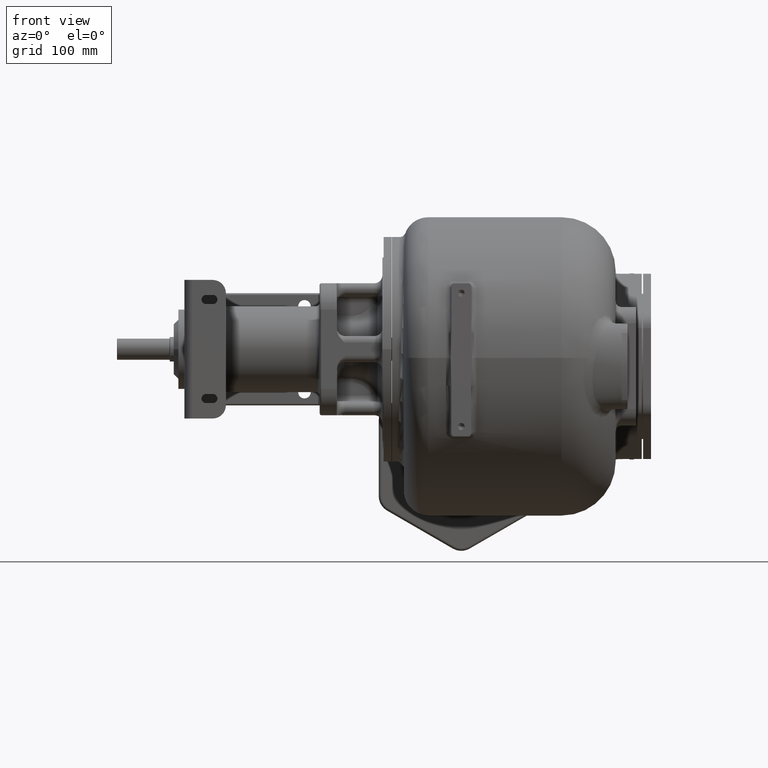
[diagram: clean part render]
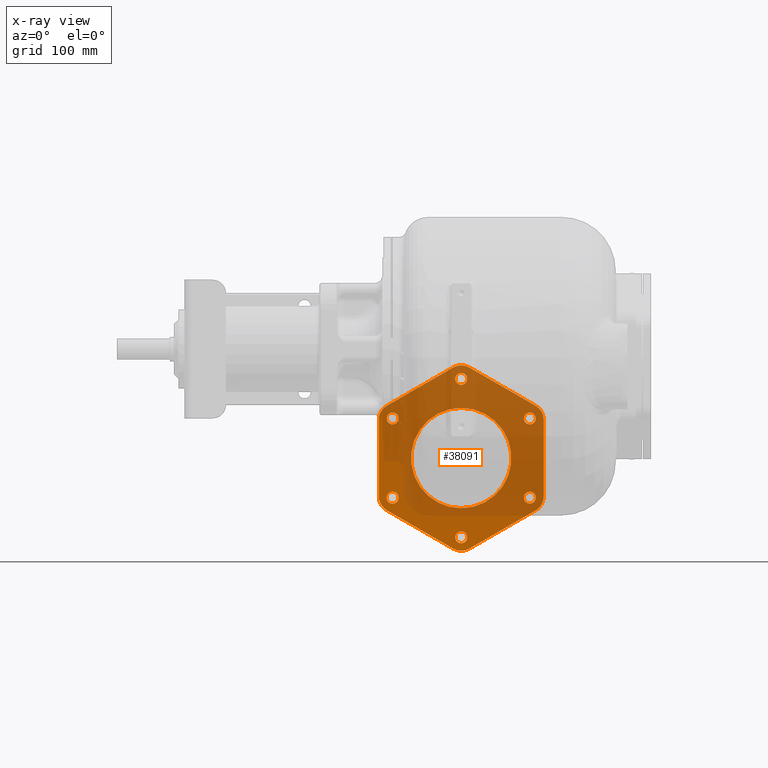
[diagram: x-ray — body ghosted, one internal face saturated and labeled with its STEP entity id]
A machine part, front view, then the same camera in x-ray: the body is ghosted and one INTERNAL B-rep face — a face not visible from any outside direction — is saturated and labeled: STEP entity #38091.
In plain terms, the highlighted planar face has unit normal (0, 1, 0).
Its self-contained STEP definition (entity closure, byte-faithful):
#37486=CARTESIAN_POINT('',(1.E2,5.52E2,-1.072649730810E2));
#37487=DIRECTION('',(0.E0,-1.E0,0.E0));
#37488=DIRECTION('',(1.E0,0.E0,0.E0));
#37489=AXIS2_PLACEMENT_3D('',#37486,#37487,#37488);
#37491=DIRECTION('',(0.E0,0.E0,1.E0));
#37492=VECTOR('',#37491,1.154700538379E2);
#37493=CARTESIAN_POINT('',(1.25E2,5.52E2,-2.227350269190E2));
#37494=LINE('',#37493,#37492);
#37495=CARTESIAN_POINT('',(1.E2,5.52E2,-2.227350269190E2));
#37496=DIRECTION('',(0.E0,-1.E0,0.E0));
#37497=DIRECTION('',(5.E-1,0.E0,-8.660254037844E-1));
#37498=AXIS2_PLACEMENT_3D('',#37495,#37496,#37497);
#37500=DIRECTION('',(8.660254037844E-1,0.E0,5.E-1));
#37501=VECTOR('',#37500,1.154700538379E2);
#37502=CARTESIAN_POINT('',(1.25E1,5.52E2,-3.021206889325E2));
#37503=LINE('',#37502,#37501);
#37504=CARTESIAN_POINT('',(-1.362119714437E-14,5.52E2,-2.804700538379E2));
#37505=DIRECTION('',(0.E0,-1.E0,0.E0));
#37506=DIRECTION('',(-5.E-1,0.E0,-8.660254037844E-1));
#37507=AXIS2_PLACEMENT_3D('',#37504,#37505,#37506);
#37509=DIRECTION('',(8.660254037844E-1,0.E0,-5.E-1));
#37510=VECTOR('',#37509,1.154700538379E2);
#37511=CARTESIAN_POINT('',(-1.125E2,5.52E2,-2.443856620136E2));
#37512=LINE('',#37511,#37510);
#37513=CARTESIAN_POINT('',(-1.E2,5.52E2,-2.227350269190E2));
#37514=DIRECTION('',(0.E0,-1.E0,0.E0));
#37515=DIRECTION('',(-1.E0,0.E0,0.E0));
#37516=AXIS2_PLACEMENT_3D('',#37513,#37514,#37515);
#37518=DIRECTION('',(0.E0,0.E0,-1.E0));
#37519=VECTOR('',#37518,1.154700538379E2);
#37520=CARTESIAN_POINT('',(-1.25E2,5.52E2,-1.072649730810E2));
#37521=LINE('',#37520,#37519);
#37522=CARTESIAN_POINT('',(-1.E2,5.52E2,-1.072649730810E2));
#37523=DIRECTION('',(0.E0,-1.E0,0.E0));
#37524=DIRECTION('',(-5.E-1,0.E0,8.660254037844E-1));
#37525=AXIS2_PLACEMENT_3D('',#37522,#37523,#37524);
#37527=DIRECTION('',(-8.660254037844E-1,0.E0,-5.E-1));
#37528=VECTOR('',#37527,1.154700538379E2);
#37529=CARTESIAN_POINT('',(-1.25E1,5.52E2,-2.787931106746E1));
#37530=LINE('',#37529,#37528);
#37531=CARTESIAN_POINT('',(1.362120489790E-14,5.52E2,-4.952994616208E1));
#37532=DIRECTION('',(0.E0,-1.E0,0.E0));
#37533=DIRECTION('',(5.E-1,0.E0,8.660254037844E-1));
#37534=AXIS2_PLACEMENT_3D('',#37531,#37532,#37533);
#37536=DIRECTION('',(-8.660254037844E-1,0.E0,5.E-1));
#37537=VECTOR('',#37536,1.154700538379E2);
#37538=CARTESIAN_POINT('',(1.125E2,5.52E2,-8.561433798643E1));
#37539=LINE('',#37538,#37537);
#37540=CARTESIAN_POINT('',(0.E0,5.52E2,-1.65E2));
#37541=DIRECTION('',(0.E0,-1.E0,0.E0));
#37542=DIRECTION('',(0.E0,0.E0,-1.E0));
#37543=AXIS2_PLACEMENT_3D('',#37540,#37541,#37542);
#37545=CARTESIAN_POINT('',(0.E0,5.52E2,-1.65E2));
#37546=DIRECTION('',(0.E0,-1.E0,0.E0));
#37547=DIRECTION('',(0.E0,0.E0,1.E0));
#37548=AXIS2_PLACEMENT_3D('',#37545,#37546,#37547);
#37550=CARTESIAN_POINT('',(-1.039230484541E2,5.52E2,-2.25E2));
#37551=DIRECTION('',(0.E0,1.E0,0.E0));
#37552=DIRECTION('',(0.E0,0.E0,1.E0));
#37553=AXIS2_PLACEMENT_3D('',#37550,#37551,#37552);
#37555=CARTESIAN_POINT('',(-1.039230484541E2,5.52E2,-2.25E2));
#37556=DIRECTION('',(0.E0,1.E0,0.E0));
#37557=DIRECTION('',(0.E0,0.E0,-1.E0));
#37558=AXIS2_PLACEMENT_3D('',#37555,#37556,#37557);
#37560=CARTESIAN_POINT('',(-2.842170249202E-14,5.52E2,-2.85E2));
#37561=DIRECTION('',(0.E0,1.E0,0.E0));
#37562=DIRECTION('',(-8.660254037844E-1,0.E0,5.E-1));
#37563=AXIS2_PLACEMENT_3D('',#37560,#37561,#37562);
#37565=CARTESIAN_POINT('',(-2.842170249202E-14,5.52E2,-2.85E2));
#37566=DIRECTION('',(0.E0,1.E0,0.E0));
#37567=DIRECTION('',(8.660254037844E-1,0.E0,-5.E-1));
#37568=AXIS2_PLACEMENT_3D('',#37565,#37566,#37567);
#37570=CARTESIAN_POINT('',(1.039230484541E2,5.52E2,-2.25E2));
#37571=DIRECTION('',(0.E0,1.E0,0.E0));
#37572=DIRECTION('',(-8.660254037844E-1,0.E0,-5.E-1));
#37573=AXIS2_PLACEMENT_3D('',#37570,#37571,#37572);
#37575=CARTESIAN_POINT('',(1.039230484541E2,5.52E2,-2.25E2));
#37576=DIRECTION('',(0.E0,1.E0,0.E0));
#37577=DIRECTION('',(8.660254037844E-1,0.E0,5.E-1));
#37578=AXIS2_PLACEMENT_3D('',#37575,#37576,#37577);
#37580=CARTESIAN_POINT('',(1.039230484541E2,5.52E2,-1.05E2));
#37581=DIRECTION('',(0.E0,1.E0,0.E0));
#37582=DIRECTION('',(0.E0,0.E0,-1.E0));
#37583=AXIS2_PLACEMENT_3D('',#37580,#37581,#37582);
#37585=CARTESIAN_POINT('',(1.039230484541E2,5.52E2,-1.05E2));
#37586=DIRECTION('',(0.E0,1.E0,0.E0));
#37587=DIRECTION('',(0.E0,0.E0,1.E0));
#37588=AXIS2_PLACEMENT_3D('',#37585,#37586,#37587);
#37590=CARTESIAN_POINT('',(7.105428663763E-14,5.52E2,-4.5E1));
#37591=DIRECTION('',(0.E0,1.E0,0.E0));
#37592=DIRECTION('',(8.660254037844E-1,0.E0,-5.E-1));
#37593=AXIS2_PLACEMENT_3D('',#37590,#37591,#37592);
#37595=CARTESIAN_POINT('',(7.105428663763E-14,5.52E2,-4.5E1));
#37596=DIRECTION('',(0.E0,1.E0,0.E0));
#37597=DIRECTION('',(-8.660254037844E-1,0.E0,5.E-1));
#37598=AXIS2_PLACEMENT_3D('',#37595,#37596,#37597);
#37600=CARTESIAN_POINT('',(-1.039230484541E2,5.52E2,-1.05E2));
#37601=DIRECTION('',(0.E0,1.E0,0.E0));
#37602=DIRECTION('',(8.660254037844E-1,0.E0,5.E-1));
#37603=AXIS2_PLACEMENT_3D('',#37600,#37601,#37602);
#37605=CARTESIAN_POINT('',(-1.039230484541E2,5.52E2,-1.05E2));
#37606=DIRECTION('',(0.E0,1.E0,0.E0));
#37607=DIRECTION('',(-8.660254037844E-1,0.E0,-5.E-1));
#37608=AXIS2_PLACEMENT_3D('',#37605,#37606,#37607);
#37658=CARTESIAN_POINT('',(-1.039230484541E2,5.52E2,-2.16E2));
#37660=VERTEX_POINT('',#37658);
#37662=CARTESIAN_POINT('',(-1.039230484541E2,5.52E2,-2.34E2));
#37664=VERTEX_POINT('',#37662);
#37666=CARTESIAN_POINT('',(-7.794228634060E0,5.52E2,-2.805E2));
#37668=VERTEX_POINT('',#37666);
#37670=CARTESIAN_POINT('',(7.794228634060E0,5.52E2,-2.895E2));
#37672=VERTEX_POINT('',#37670);
#37674=CARTESIAN_POINT('',(9.612881982007E1,5.52E2,-2.295E2));
#37676=VERTEX_POINT('',#37674);
#37678=CARTESIAN_POINT('',(1.117172770882E2,5.52E2,-2.205E2));
#37680=VERTEX_POINT('',#37678);
#37682=CARTESIAN_POINT('',(1.039230484541E2,5.52E2,-1.14E2));
#37684=VERTEX_POINT('',#37682);
#37686=CARTESIAN_POINT('',(1.039230484541E2,5.52E2,-9.6E1));
#37688=VERTEX_POINT('',#37686);
#37690=CARTESIAN_POINT('',(7.794228634060E0,5.52E2,-4.95E1));
#37692=VERTEX_POINT('',#37690);
#37694=CARTESIAN_POINT('',(-7.794228634060E0,5.52E2,-4.05E1));
#37696=VERTEX_POINT('',#37694);
#37698=CARTESIAN_POINT('',(-9.612881982007E1,5.52E2,-1.005E2));
#37700=VERTEX_POINT('',#37698);
#37702=CARTESIAN_POINT('',(-1.117172770882E2,5.52E2,-1.095E2));
#37704=VERTEX_POINT('',#37702);
#37706=CARTESIAN_POINT('',(0.E0,5.52E2,-2.41E2));
#37707=CARTESIAN_POINT('',(0.E0,5.52E2,-8.9E1));
#37708=VERTEX_POINT('',#37706);
#37709=VERTEX_POINT('',#37707);
#37718=CARTESIAN_POINT('',(1.25E2,5.52E2,-1.072649730810E2));
#37719=VERTEX_POINT('',#37718);
#37720=CARTESIAN_POINT('',(1.125E2,5.52E2,-8.561433798643E1));
#37721=VERTEX_POINT('',#37720);
#37726=CARTESIAN_POINT('',(1.25E1,5.52E2,-2.787931106746E1));
#37727=VERTEX_POINT('',#37726);
#37728=CARTESIAN_POINT('',(-1.25E1,5.52E2,-2.787931106746E1));
#37729=VERTEX_POINT('',#37728);
#37734=CARTESIAN_POINT('',(-1.125E2,5.52E2,-8.561433798643E1));
#37735=VERTEX_POINT('',#37734);
#37736=CARTESIAN_POINT('',(-1.25E2,5.52E2,-1.072649730810E2));
#37737=VERTEX_POINT('',#37736);
#37742=CARTESIAN_POINT('',(-1.25E2,5.52E2,-2.227350269190E2));
#37743=VERTEX_POINT('',#37742);
#37744=CARTESIAN_POINT('',(-1.125E2,5.52E2,-2.443856620136E2));
#37745=VERTEX_POINT('',#37744);
#37750=CARTESIAN_POINT('',(-1.25E1,5.52E2,-3.021206889325E2));
#37751=VERTEX_POINT('',#37750);
#37752=CARTESIAN_POINT('',(1.25E1,5.52E2,-3.021206889325E2));
#37753=VERTEX_POINT('',#37752);
#37758=CARTESIAN_POINT('',(1.125E2,5.52E2,-2.443856620136E2));
#37759=VERTEX_POINT('',#37758);
#37760=CARTESIAN_POINT('',(1.25E2,5.52E2,-2.227350269190E2));
#37761=VERTEX_POINT('',#37760);
#38032=CARTESIAN_POINT('',(0.E0,5.52E2,-1.65E2));
#38033=DIRECTION('',(0.E0,1.E0,0.E0));
#38034=DIRECTION('',(0.E0,0.E0,-1.E0));
#38035=AXIS2_PLACEMENT_3D('',#38032,#38033,#38034);
#38036=PLANE('',#38035);
#38037=ORIENTED_EDGE('',*,*,#37872,.F.);
#38038=ORIENTED_EDGE('',*,*,#37888,.F.);
#38039=ORIENTED_EDGE('',*,*,#37901,.F.);
#38040=ORIENTED_EDGE('',*,*,#37914,.F.);
#38041=ORIENTED_EDGE('',*,*,#37929,.F.);
#38042=ORIENTED_EDGE('',*,*,#37942,.F.);
#38043=ORIENTED_EDGE('',*,*,#37957,.F.);
#38044=ORIENTED_EDGE('',*,*,#37970,.F.);
#38045=ORIENTED_EDGE('',*,*,#37985,.F.);
#38046=ORIENTED_EDGE('',*,*,#37998,.F.);
#38047=ORIENTED_EDGE('',*,*,#38013,.F.);
#38048=ORIENTED_EDGE('',*,*,#38025,.F.);
#38049=EDGE_LOOP('',(#38037,#38038,#38039,#38040,#38041,#38042,#38043,#38044,
#38045,#38046,#38047,#38048));
#38050=FACE_OUTER_BOUND('',#38049,.F.);
#38052=ORIENTED_EDGE('',*,*,#38051,.T.);
#38054=ORIENTED_EDGE('',*,*,#38053,.T.);
#38055=EDGE_LOOP('',(#38052,#38054));
#38056=FACE_BOUND('',#38055,.F.);
#38058=ORIENTED_EDGE('',*,*,#38057,.F.);
#38060=ORIENTED_EDGE('',*,*,#38059,.F.);
#38061=EDGE_LOOP('',(#38058,#38060));
#38062=FACE_BOUND('',#38061,.F.);
#38064=ORIENTED_EDGE('',*,*,#38063,.F.);
#38066=ORIENTED_EDGE('',*,*,#38065,.F.);
#38067=EDGE_LOOP('',(#38064,#38066));
#38068=FACE_BOUND('',#38067,.F.);
#38070=ORIENTED_EDGE('',*,*,#38069,.F.);
#38072=ORIENTED_EDGE('',*,*,#38071,.F.);
#38073=EDGE_LOOP('',(#38070,#38072));
#38074=FACE_BOUND('',#38073,.F.);
#38076=ORIENTED_EDGE('',*,*,#38075,.F.);
#38078=ORIENTED_EDGE('',*,*,#38077,.F.);
#38079=EDGE_LOOP('',(#38076,#38078));
#38080=FACE_BOUND('',#38079,.F.);
#38081=ORIENTED_EDGE('',*,*,#37769,.F.);
#38082=ORIENTED_EDGE('',*,*,#37787,.F.);
#38083=EDGE_LOOP('',(#38081,#38082));
#38084=FACE_BOUND('',#38083,.F.);
#38086=ORIENTED_EDGE('',*,*,#38085,.F.);
#38088=ORIENTED_EDGE('',*,*,#38087,.F.);
#38089=EDGE_LOOP('',(#38086,#38088));
#38090=FACE_BOUND('',#38089,.F.);
#38091=ADVANCED_FACE('',(#38050,#38056,#38062,#38068,#38074,#38080,#38084,
#38090),#38036,.F.);
#37490=CIRCLE('',#37489,2.5E1);
#37499=CIRCLE('',#37498,2.5E1);
#37508=CIRCLE('',#37507,2.5E1);
#37517=CIRCLE('',#37516,2.5E1);
#37526=CIRCLE('',#37525,2.5E1);
#37535=CIRCLE('',#37534,2.5E1);
#37544=CIRCLE('',#37543,7.6E1);
#37549=CIRCLE('',#37548,7.6E1);
#37554=CIRCLE('',#37553,9.E0);
#37559=CIRCLE('',#37558,9.E0);
#37564=CIRCLE('',#37563,9.E0);
#37569=CIRCLE('',#37568,9.E0);
#37574=CIRCLE('',#37573,9.E0);
#37579=CIRCLE('',#37578,9.E0);
#37584=CIRCLE('',#37583,9.E0);
#37589=CIRCLE('',#37588,9.E0);
#37594=CIRCLE('',#37593,9.E0);
#37599=CIRCLE('',#37598,9.E0);
#37604=CIRCLE('',#37603,9.E0);
#37609=CIRCLE('',#37608,9.E0);
#37769=EDGE_CURVE('',#37692,#37696,#37594,.T.);
#37787=EDGE_CURVE('',#37696,#37692,#37599,.T.);
#37872=EDGE_CURVE('',#37719,#37721,#37490,.T.);
#37888=EDGE_CURVE('',#37761,#37719,#37494,.T.);
#37901=EDGE_CURVE('',#37759,#37761,#37499,.T.);
#37914=EDGE_CURVE('',#37753,#37759,#37503,.T.);
#37929=EDGE_CURVE('',#37751,#37753,#37508,.T.);
#37942=EDGE_CURVE('',#37745,#37751,#37512,.T.);
#37957=EDGE_CURVE('',#37743,#37745,#37517,.T.);
#37970=EDGE_CURVE('',#37737,#37743,#37521,.T.);
#37985=EDGE_CURVE('',#37735,#37737,#37526,.T.);
#37998=EDGE_CURVE('',#37729,#37735,#37530,.T.);
#38013=EDGE_CURVE('',#37727,#37729,#37535,.T.);
#38025=EDGE_CURVE('',#37721,#37727,#37539,.T.);
#38051=EDGE_CURVE('',#37708,#37709,#37544,.T.);
#38053=EDGE_CURVE('',#37709,#37708,#37549,.T.);
#38057=EDGE_CURVE('',#37660,#37664,#37554,.T.);
#38059=EDGE_CURVE('',#37664,#37660,#37559,.T.);
#38063=EDGE_CURVE('',#37668,#37672,#37564,.T.);
#38065=EDGE_CURVE('',#37672,#37668,#37569,.T.);
#38069=EDGE_CURVE('',#37676,#37680,#37574,.T.);
#38071=EDGE_CURVE('',#37680,#37676,#37579,.T.);
#38075=EDGE_CURVE('',#37684,#37688,#37584,.T.);
#38077=EDGE_CURVE('',#37688,#37684,#37589,.T.);
#38085=EDGE_CURVE('',#37700,#37704,#37604,.T.);
#38087=EDGE_CURVE('',#37704,#37700,#37609,.T.);